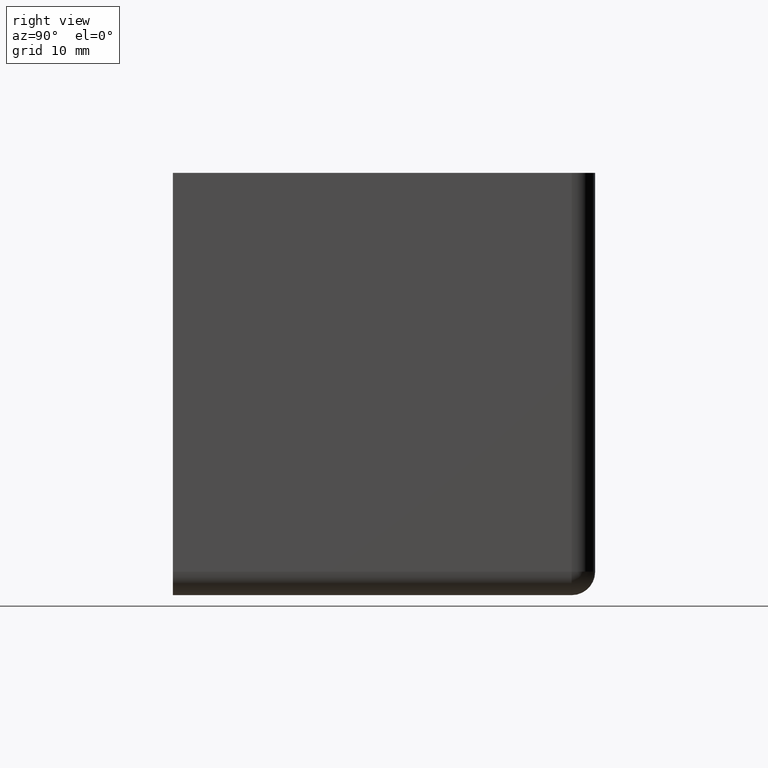
[diagram: clean part render]
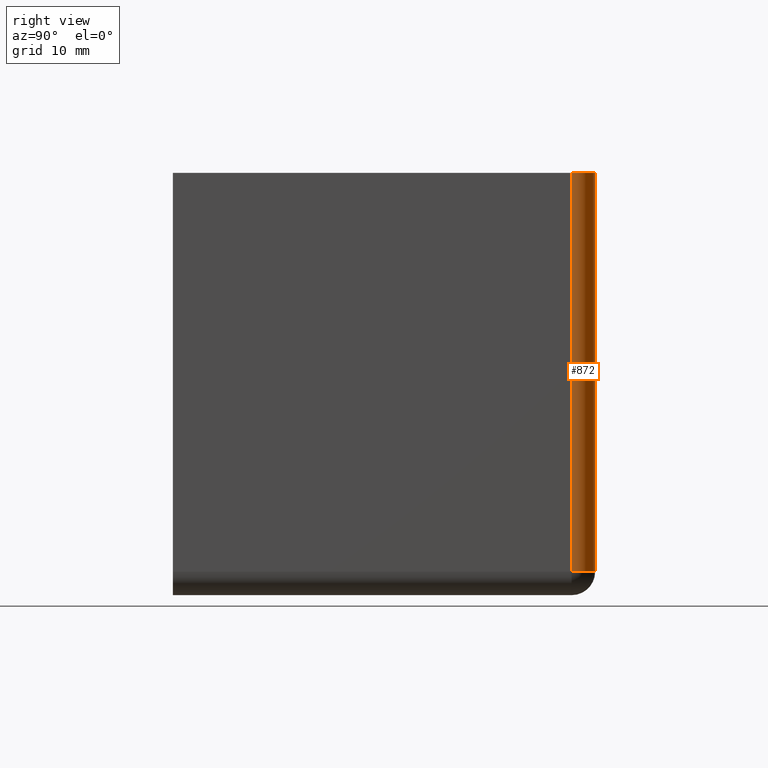
[diagram: same view with one face highlighted and labeled with its STEP entity id]
A machine part, right view. The second image highlights one B-rep face of the part: STEP entity #872.
In plain terms, the highlighted cylindrical surface (edge-blend (fillet) strip) has radius 2.5 mm, axis along (0, 0, 1).
Its self-contained STEP definition (entity closure, byte-faithful):
#88=FACE_OUTER_BOUND('',#142,.T.);
#142=EDGE_LOOP('',(#733,#734,#735,#736));
#173=CIRCLE('',#946,2.5);
#176=CIRCLE('',#962,2.5);
#201=LINE('',#1309,#307);
#204=LINE('',#1316,#310);
#307=VECTOR('',#1049,1000.);
#310=VECTOR('',#1054,1000.);
#430=VERTEX_POINT('',#1306);
#431=VERTEX_POINT('',#1308);
#433=VERTEX_POINT('',#1313);
#434=VERTEX_POINT('',#1315);
#512=EDGE_CURVE('',#430,#431,#201,.T.);
#515=EDGE_CURVE('',#433,#434,#204,.T.);
#541=EDGE_CURVE('',#434,#430,#173,.T.);
#550=EDGE_CURVE('',#433,#431,#176,.T.);
#733=ORIENTED_EDGE('',*,*,#550,.T.);
#734=ORIENTED_EDGE('',*,*,#512,.F.);
#735=ORIENTED_EDGE('',*,*,#541,.F.);
#736=ORIENTED_EDGE('',*,*,#515,.F.);
#848=CYLINDRICAL_SURFACE('',#963,2.5);
#872=ADVANCED_FACE('',(#88),#848,.T.);
#946=AXIS2_PLACEMENT_3D('',#1364,#1091,#1092);
#962=AXIS2_PLACEMENT_3D('',#1386,#1129,#1130);
#963=AXIS2_PLACEMENT_3D('',#1387,#1131,#1132);
#1049=DIRECTION('',(0.,0.,-1.));
#1054=DIRECTION('',(0.,0.,1.));
#1091=DIRECTION('center_axis',(0.,0.,1.));
#1092=DIRECTION('ref_axis',(-1.,0.,0.));
#1129=DIRECTION('center_axis',(0.,0.,1.));
#1130=DIRECTION('ref_axis',(-1.,0.,0.));
#1131=DIRECTION('center_axis',(0.,0.,1.));
#1132=DIRECTION('ref_axis',(1.,0.,0.));
#1306=CARTESIAN_POINT('',(42.5,45.,0.));
#1308=CARTESIAN_POINT('',(42.5,45.,-42.5));
#1309=CARTESIAN_POINT('',(42.5,45.,-45.));
#1313=CARTESIAN_POINT('',(45.,42.5,-42.5));
#1315=CARTESIAN_POINT('',(45.,42.5,0.));
#1316=CARTESIAN_POINT('',(45.,42.5,-45.));
#1364=CARTESIAN_POINT('Origin',(42.5,42.5,0.));
#1386=CARTESIAN_POINT('Origin',(42.5,42.5,-42.5));
#1387=CARTESIAN_POINT('Origin',(42.5,42.5,-45.));